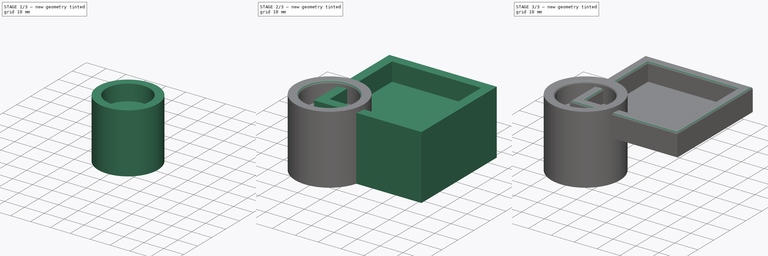
[diagram: build sequence overview — one tinted view per stage of 3, left to right]
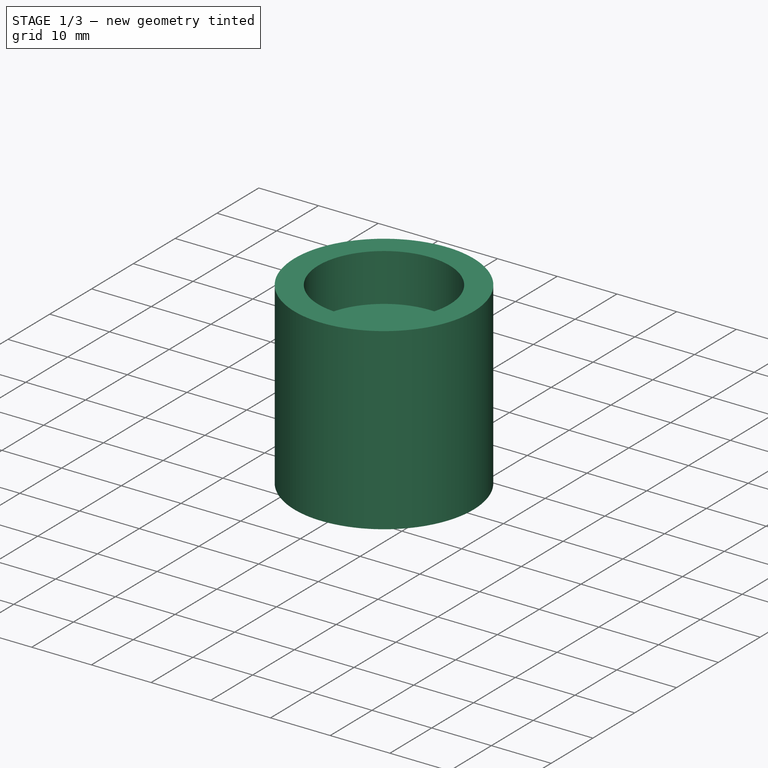
[diagram: stage 1 of 3 — iso view after this stage's code; geometry added in this stage tinted green]
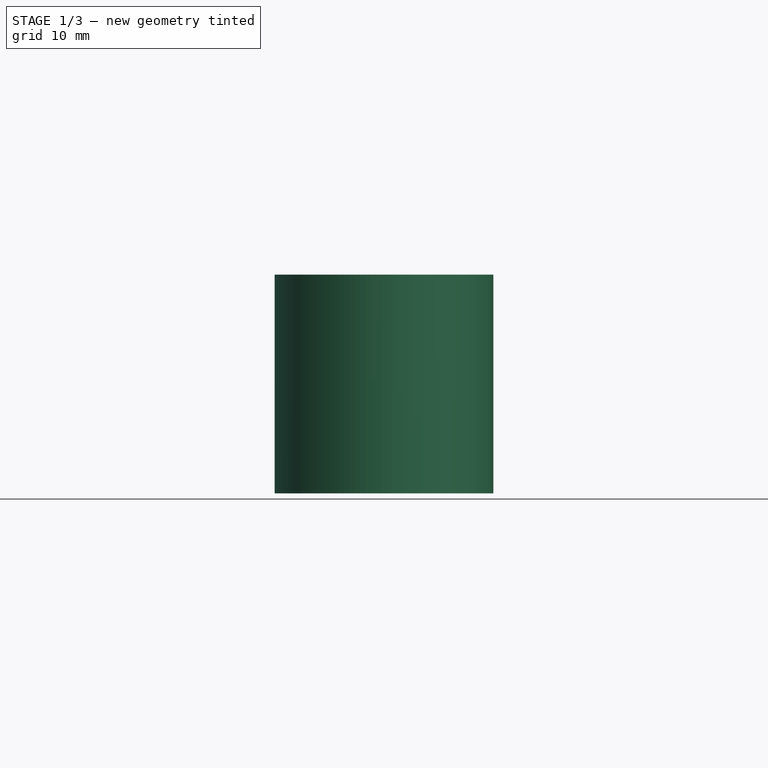
[diagram: stage 1 of 3 — front view after this stage's code; geometry added in this stage tinted green]
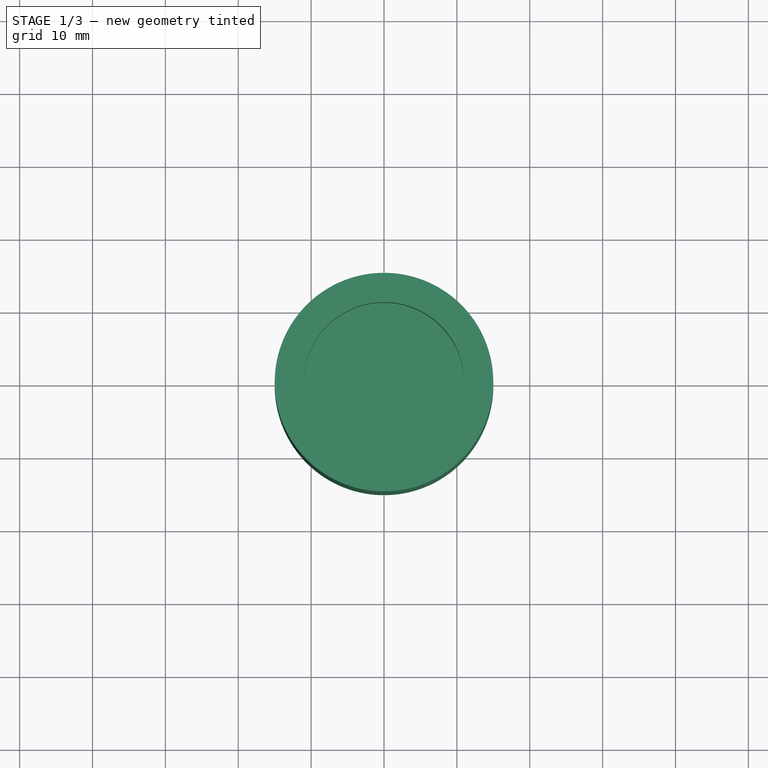
[diagram: stage 1 of 3 — top view after this stage's code; geometry added in this stage tinted green]
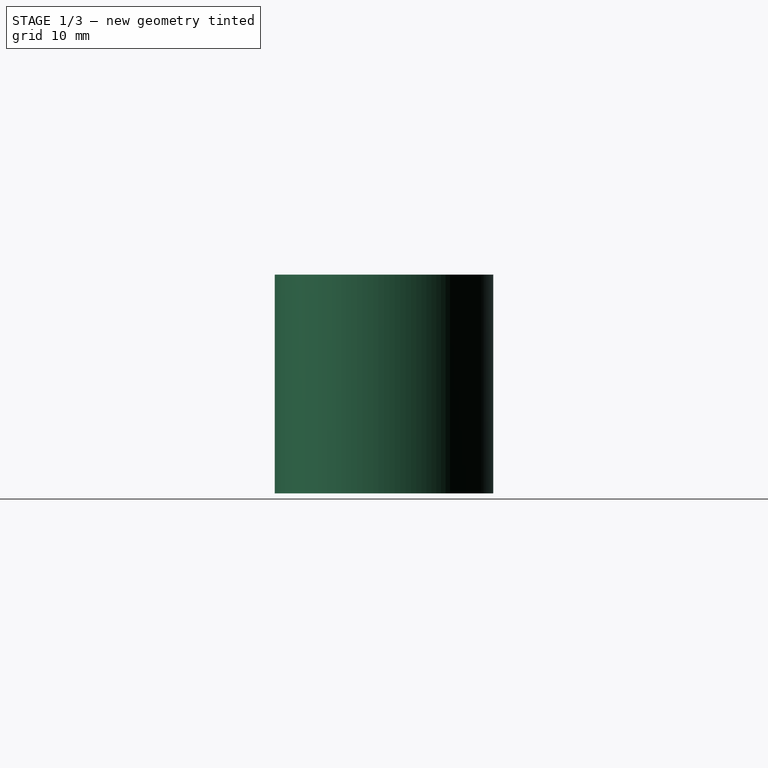
[diagram: stage 1 of 3 — right view after this stage's code; geometry added in this stage tinted green]
FCSTD DOCUMENT  (FreeCAD 0.20R29177 +426 (Git))
Label: Shelf4x2Raiser
License: All rights reserved
LicenseURL: http://en.wikipedia.org/wiki/All_rights_reserved
objects: Sketcher::SketchObject×6, PartDesign::Pad×3, PartDesign::Fillet×2, PartDesign::Pocket×2, PartDesign::Body×2, Spreadsheet::Sheet×1
note: 22 computed .brp shape members not serialized (recipe doc carries the construction recipe); baked Part::Feature solids carry a one-line shape summary decoded from their .brp

FEATURE [PartDesign::Body] Body
  Group = -> [Sketch,Pad,Sketch001,Pad001,Fillet,Sketch002,Pocket]
  Origin = -> Origin
  Tip = -> Pocket
FEATURE [Sketcher::SketchObject] Sketch003
  FullyConstrained = true
  MapMode = 5
  Support = -> [XY_Plane001]
  expr: Constraints[1] = Spreadsheet.shelfCenterRodOuterR
  sketch-geometry (1):
    g0: Circle CenterX=0 CenterY=0 CenterZ=0 NormalX=0 NormalY=0 NormalZ=1 AngleXU=0 Radius=15
  constraints (2):
    c: Coincident(g0,g-1)
    c: Radius(g0) = 15
FEATURE [PartDesign::Pad] Pad002
  Direction = (0,0,1)
  Length = 30
  Length2 = 10
  Profile = -> Sketch003
  ReferenceAxis = -> Sketch003 [N_Axis]
  Type = 0
  expr: Length = Spreadsheet.shelfCenterRodeTotalHeight
FEATURE [Sketcher::SketchObject] Sketch004
  AttachmentOffset = pos=(0,0,22) rot=(0,0,1;0rad)
  FullyConstrained = true
  MapMode = 5
  Placement = pos=(0,0,22) rot=(0,0,1;0rad)
  Support = -> [XY_Plane001]
  expr: .AttachmentOffset.Base.z = Spreadsheet.shelfCenterRodBottomHeight
  expr: Constraints[1] = Spreadsheet.shelfCenterRodR
  sketch-geometry (1):
    g0: Circle CenterX=0 CenterY=0 CenterZ=0 NormalX=0 NormalY=0 NormalZ=1 AngleXU=0 Radius=11
  constraints (2):
    c: Coincident(g0,g-1)
    c: Radius(g0) = 11
FEATURE [PartDesign::Pocket] Pocket001
  BaseFeature = -> Pad002
  Direction = (0,0,-1)
  Length = 5
  Length2 = 5
  Profile = -> Sketch004
  ReferenceAxis = -> Sketch004 [N_Axis]
  Reversed = true
  Type = 1
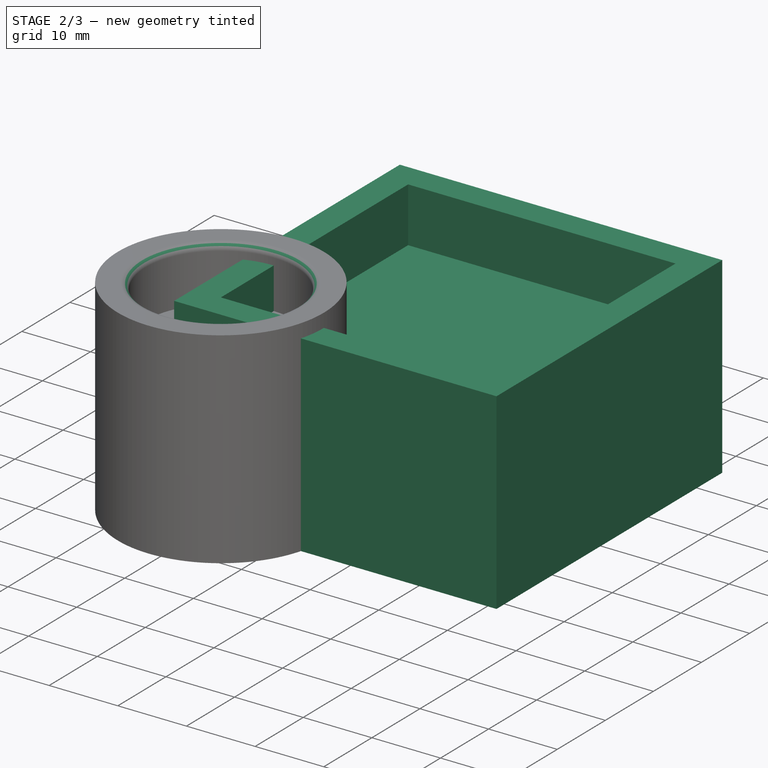
[diagram: stage 2 of 3 — iso view after this stage's code; geometry added in this stage tinted green]
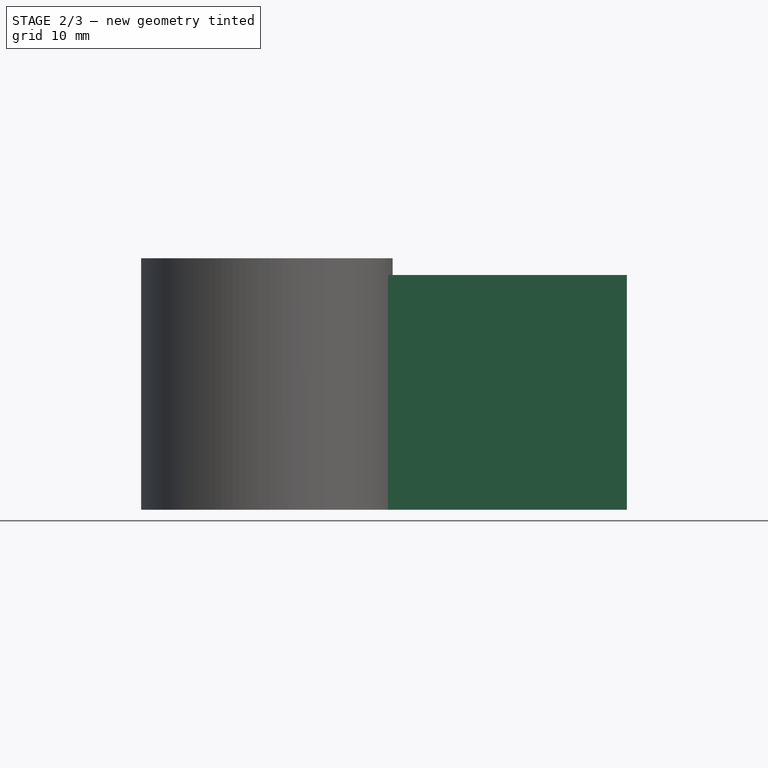
[diagram: stage 2 of 3 — front view after this stage's code; geometry added in this stage tinted green]
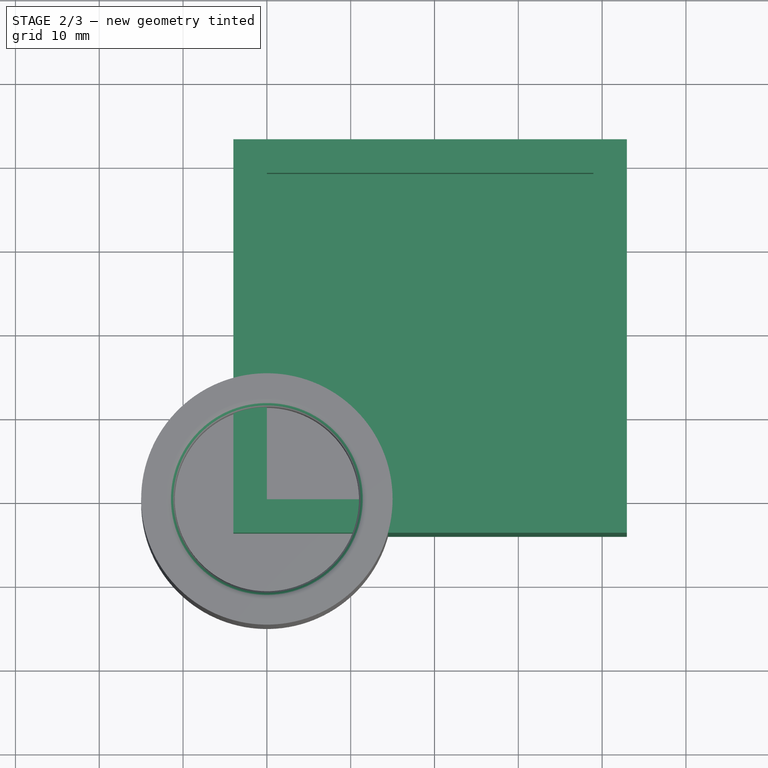
[diagram: stage 2 of 3 — top view after this stage's code; geometry added in this stage tinted green]
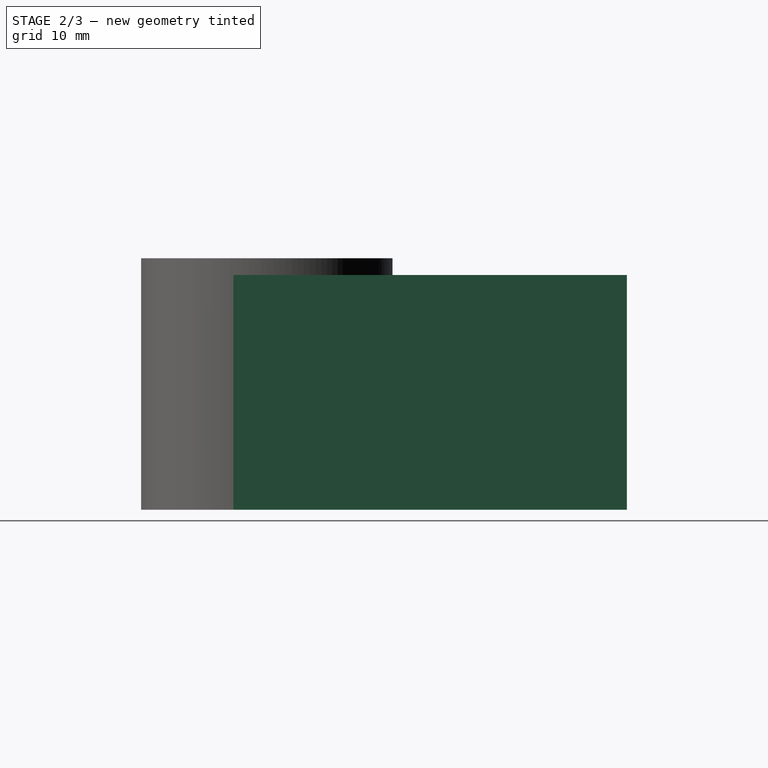
[diagram: stage 2 of 3 — right view after this stage's code; geometry added in this stage tinted green]
FEATURE [Spreadsheet::Sheet] Spreadsheet
  cells = A2=size; B2(size)==40 - 1.05; A3=additionalHeight; B3(additionalHeight)=20; A4=guardHeight; B4(guardHeight)=8; A5=outerSize; B5(outerSize)==size + wallThickness * 2; A6=wallThickness; B6(wallThickness)=4; A7=totalHeight; B7(totalHeight)==additionalHeight + guardHeight; A12=shelfCenterRodR; B12(shelfCenterRodR)==22 / 2; A13=shelfCenterRodBottomHeight; B13(shelfCenterRodBottomHeight)=22; A14=shelfCenterRodeTotalHeight; B14(shelfCenterRodeTotalHeight)==shelfCenterRodBottomHeight + guardHeight; A15=shelfCenterRodOuterR; B15(shelfCenterRodOuterR)==shelfCenterRodR + wallThickness
FEATURE [Sketcher::SketchObject] Sketch
  FullyConstrained = true
  MapMode = 5
  Support = -> [XY_Plane]
  expr: Constraints[10] = Spreadsheet.size
  expr: Constraints[19] = Spreadsheet.outerSize
  expr: Constraints[20] = Spreadsheet.outerSize
  expr: Constraints[21] = Spreadsheet.wallThickness
  expr: Constraints[22] = Spreadsheet.wallThickness
  expr: Constraints[9] = Spreadsheet.size
  sketch-geometry (8):
    g0: LineSegment StartX=0 StartY=0 StartZ=0 EndX=38.95 EndY=0 EndZ=0
    g1: LineSegment StartX=38.95 StartY=0 StartZ=0 EndX=38.95 EndY=38.95 EndZ=0
    g2: LineSegment StartX=38.95 StartY=38.95 StartZ=0 EndX=0 EndY=38.95 EndZ=0
    g3: LineSegment StartX=0 StartY=38.95 StartZ=0 EndX=0 EndY=0 EndZ=0
    g4: LineSegment StartX=-4 StartY=42.95 StartZ=0 EndX=42.95 EndY=42.95 EndZ=0
    g5: LineSegment StartX=42.95 StartY=42.95 StartZ=0 EndX=42.95 EndY=-4 EndZ=0
    g6: LineSegment StartX=42.95 StartY=-4 StartZ=0 EndX=-4 EndY=-4 EndZ=0
    g7: LineSegment StartX=-4 StartY=-4 StartZ=0 EndX=-4 EndY=42.95 EndZ=0
  constraints (23):
    c: Coincident(g0,g1)
    c: Coincident(g1,g2)
    c: Coincident(g2,g3)
    c: Coincident(g3,g0)
    c: Horizontal(g0)
    c: Horizontal(g2)
    c: Vertical(g1)
    c: Vertical(g3)
    c: Coincident(g0,g-1)
    c: DistanceX(g2,g2) = 38.95
    c: DistanceY(g1,g1) = 38.95
    c: Coincident(g4,g5)
    c: Coincident(g5,g6)
    c: Coincident(g6,g7)
    c: Coincident(g7,g4)
    c: Horizontal(g4)
    c: Horizontal(g6)
    c: Vertical(g5)
    c: Vertical(g7)
    c: DistanceX(g4,g4) = 46.95
    c: DistanceY(g5,g5) = 46.95
    c: DistanceX(g6,g0) = 4
    c: DistanceY(g6,g0) = 4
FEATURE [PartDesign::Pad] Pad
  Direction = (0,0,1)
  Length = 28
  Length2 = 10
  Profile = -> Sketch
  ReferenceAxis = -> Sketch [N_Axis]
  Type = 0
  expr: Length = Spreadsheet.totalHeight
FEATURE [Sketcher::SketchObject] Sketch001
  FullyConstrained = true
  MapMode = 5
  Support = -> [XY_Plane]
  expr: Constraints[10] = Spreadsheet.size
  expr: Constraints[9] = Spreadsheet.size
  sketch-geometry (4):
    g0: LineSegment StartX=0 StartY=0 StartZ=0 EndX=38.95 EndY=0 EndZ=0
    g1: LineSegment StartX=38.95 StartY=0 StartZ=0 EndX=38.95 EndY=38.95 EndZ=0
    g2: LineSegment StartX=38.95 StartY=38.95 StartZ=0 EndX=0 EndY=38.95 EndZ=0
    g3: LineSegment StartX=0 StartY=38.95 StartZ=0 EndX=0 EndY=0 EndZ=0
  constraints (11):
    c: Coincident(g0,g1)
    c: Coincident(g1,g2)
    c: Coincident(g2,g3)
    c: Coincident(g3,g0)
    c: Horizontal(g0)
    c: Horizontal(g2)
    c: Vertical(g1)
    c: Vertical(g3)
    c: Coincident(g0,g-1)
    c: DistanceX(g2,g2) = 38.95
    c: DistanceY(g1,g1) = 38.95
FEATURE [PartDesign::Pad] Pad001
  BaseFeature = -> Pad
  Direction = (0,0,1)
  Length = 20
  Length2 = 10
  Profile = -> Sketch001
  ReferenceAxis = -> Sketch001 [N_Axis]
  Type = 0
  expr: Length = Spreadsheet.additionalHeight
FEATURE [Sketcher::SketchObject] Sketch005
  FullyConstrained = false
  MapMode = 5
  Placement = pos=(0,0,0) rot=(0.57735,0.57735,0.57735;2.0944rad)
  Support = -> [YZ_Plane001]
  sketch-geometry (10):
    g0: LineSegment StartX=18.8645 StartY=31.3195 StartZ=0 EndX=18.8645 EndY=-2.88227 EndZ=0
    g1: LineSegment StartX=18.8645 StartY=-2.88227 StartZ=0 EndX=-20.8435 EndY=-2.88227 EndZ=0
    g2: LineSegment StartX=-20.8435 StartY=-2.88227 StartZ=0 EndX=-20.8435 EndY=19.1814 EndZ=0
    g3: LineSegment StartX=-25.5803 StartY=19.1814 StartZ=0 EndX=-20.8435 EndY=19.1814 EndZ=0
    g4: LineSegment StartX=18.8645 StartY=31.3195 StartZ=0 EndX=-25.5803 EndY=31.3195 EndZ=0
    g5: LineSegment StartX=-25.5803 StartY=31.3195 StartZ=0 EndX=-25.5803 EndY=19.1814 EndZ=0
    g6: LineSegment StartX=-13.1452 StartY=27.799 StartZ=0 EndX=12.8601 EndY=27.799 EndZ=0
    g7: LineSegment StartX=12.8601 StartY=27.799 StartZ=0 EndX=12.8601 EndY=19.4108 EndZ=0
    g8: LineSegment StartX=12.8601 StartY=19.4108 StartZ=0 EndX=-13.1452 EndY=19.4108 EndZ=0
    g9: LineSegment StartX=-13.1452 StartY=19.4108 StartZ=0 EndX=-13.1452 EndY=27.799 EndZ=0
  constraints (20):
    c: Coincident(g0,g1)
    c: Coincident(g1,g2)
    c: Horizontal(g1)
    c: Vertical(g0)
    c: Vertical(g2)
    c: Coincident(g4,g5)
    c: Coincident(g5,g3)
    c: Horizontal(g3)
    c: Horizontal(g4)
    c: Vertical(g5)
    c: Coincident(g3,g2)
    c: Coincident(g4,g0)
    c: Coincident(g6,g7)
    c: Coincident(g7,g8)
    c: Coincident(g8,g9)
    c: Coincident(g9,g6)
    c: Horizontal(g6)
    c: Horizontal(g8)
    c: Vertical(g7)
    c: Vertical(g9)
FEATURE [PartDesign::Fillet] Fillet001
  Base = -> Pocket001 [Edge4]
  BaseFeature = -> Pocket001
  Radius = 1
  SupportTransform = false
  UseAllEdges = false
FEATURE [PartDesign::Body] Body001  label="Body001ShelfCenter"
  Group = -> [Sketch003,Pad002,Sketch004,Pocket001,Sketch005,Fillet001]
  Origin = -> Origin001
  Tip = -> Fillet001
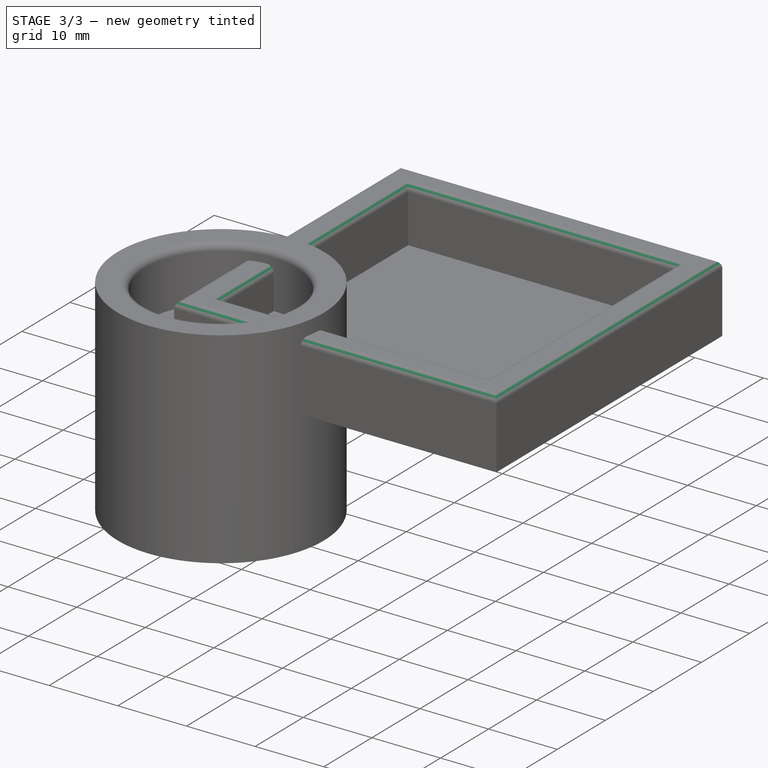
[diagram: stage 3 of 3 — iso view after this stage's code; geometry added in this stage tinted green]
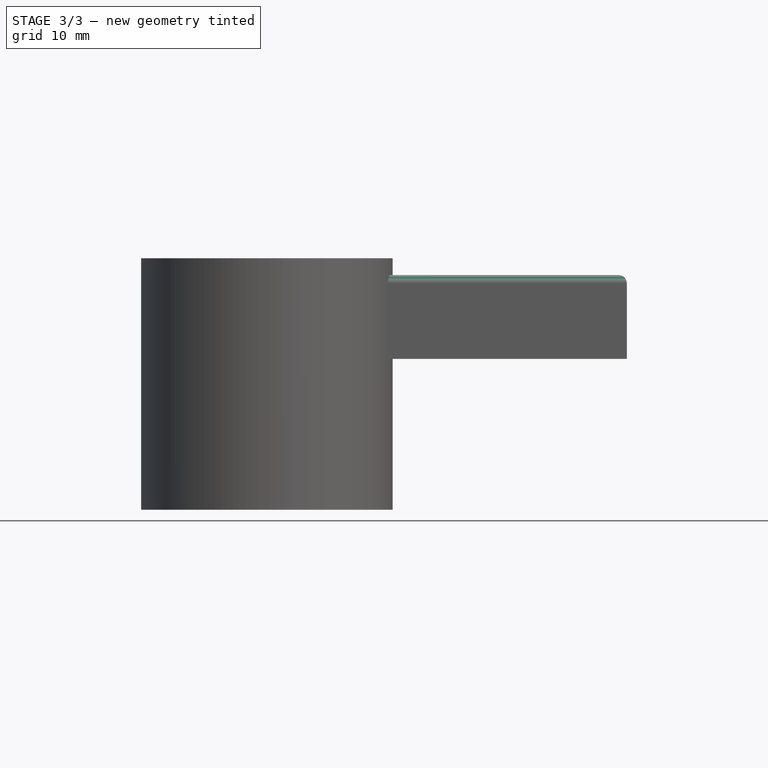
[diagram: stage 3 of 3 — front view after this stage's code; geometry added in this stage tinted green]
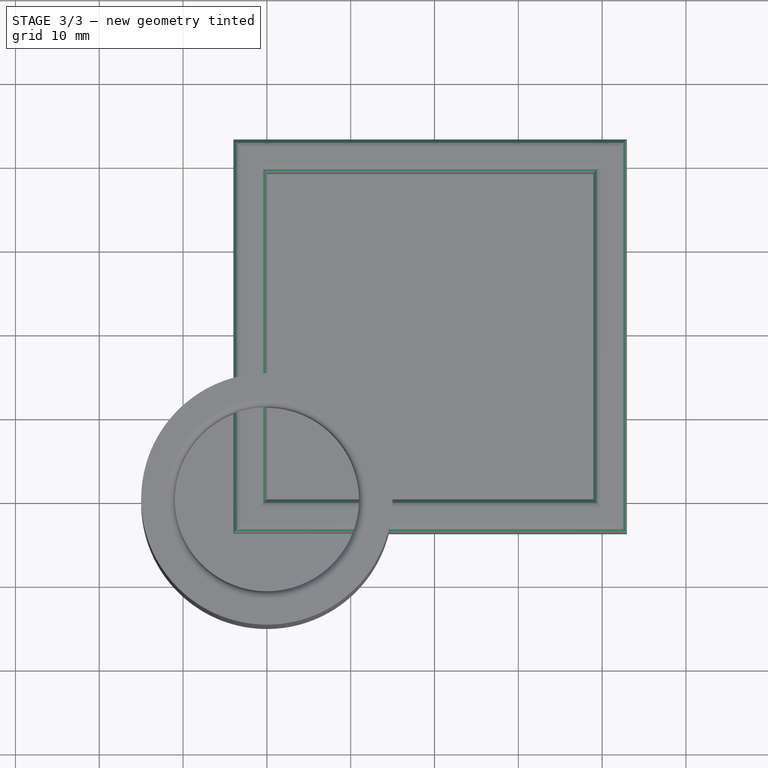
[diagram: stage 3 of 3 — top view after this stage's code; geometry added in this stage tinted green]
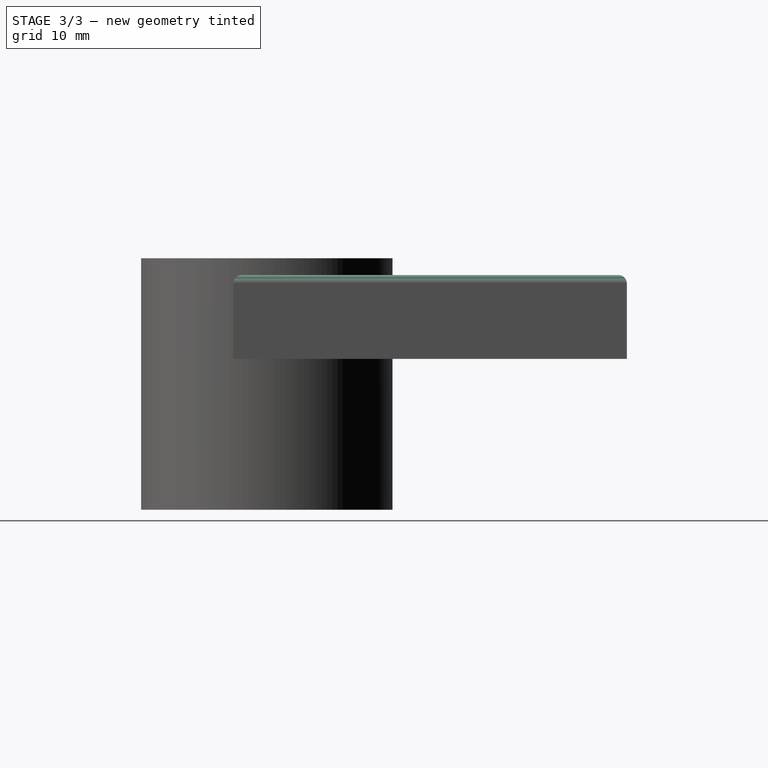
[diagram: stage 3 of 3 — right view after this stage's code; geometry added in this stage tinted green]
FEATURE [PartDesign::Fillet] Fillet
  Base = -> Pad001 [Face5]
  BaseFeature = -> Pad001
  Radius = 1
  SupportTransform = false
  UseAllEdges = false
FEATURE [Sketcher::SketchObject] Sketch002
  FullyConstrained = false
  MapMode = 5
  Support = -> [XY_Plane]
  sketch-geometry (1):
    g0: Circle CenterX=-5.0438 CenterY=44.418 CenterZ=0 NormalX=0 NormalY=0 NormalZ=1 AngleXU=0 Radius=74.3428
FEATURE [PartDesign::Pocket] Pocket
  BaseFeature = -> Fillet
  Direction = (0,0,-1)
  Length = 18
  Length2 = 5
  Profile = -> Sketch002
  ReferenceAxis = -> Sketch002 [N_Axis]
  Reversed = true
  Type = 0
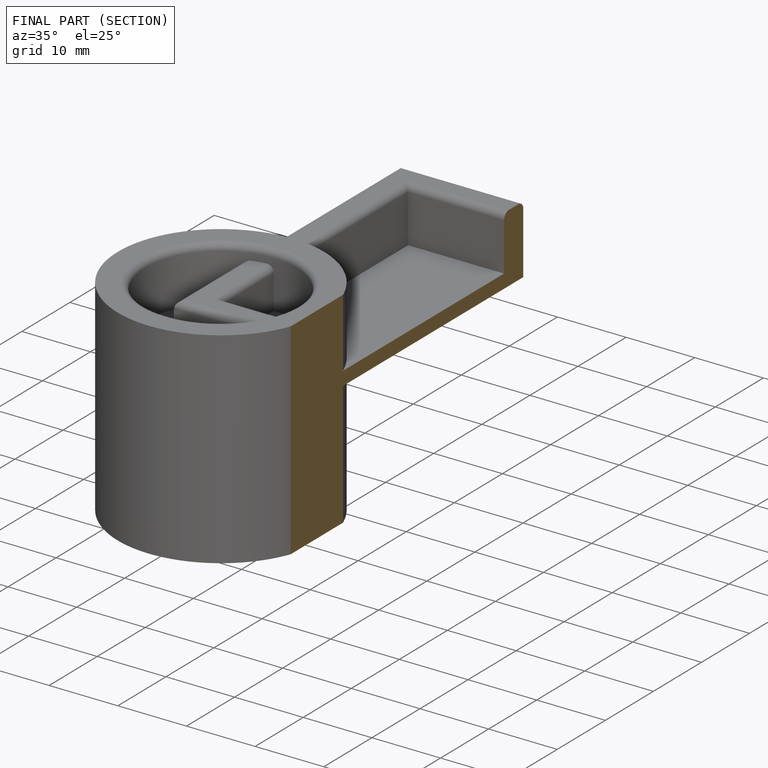
[diagram: finished part — half-section view (interior)]
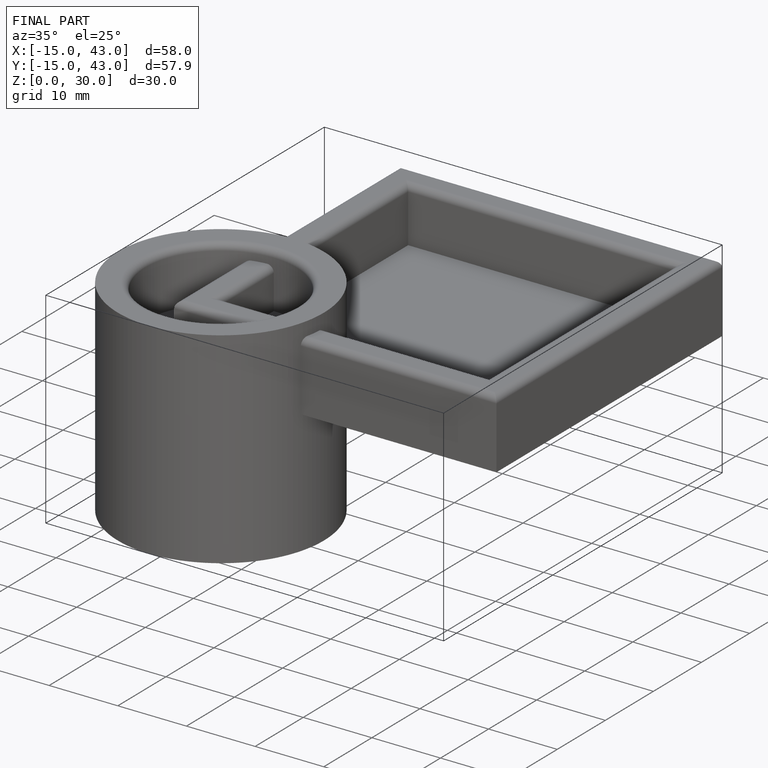
[diagram: finished part — iso view with bounding-box wireframe]
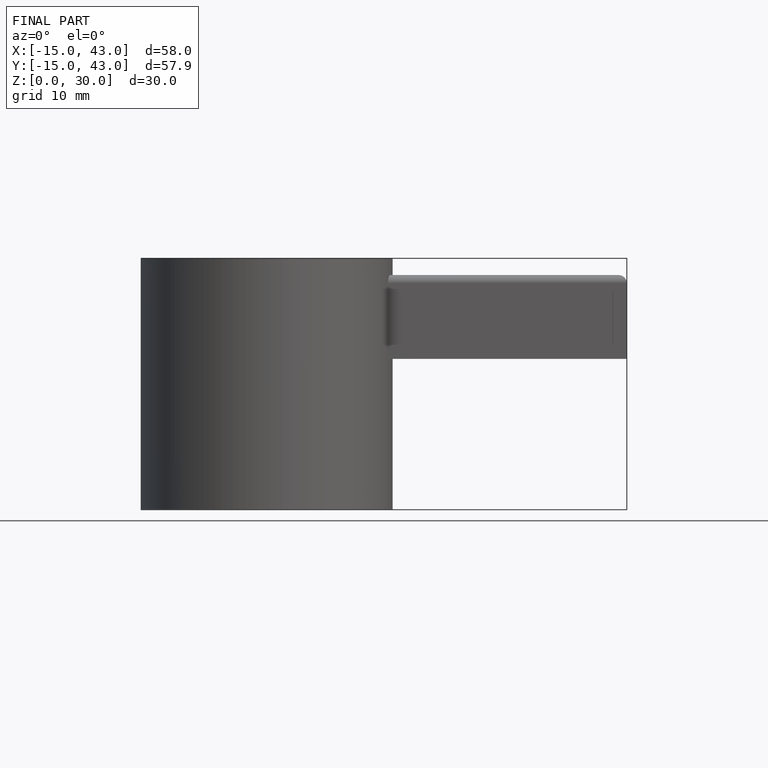
[diagram: finished part — front view with bounding-box wireframe]
